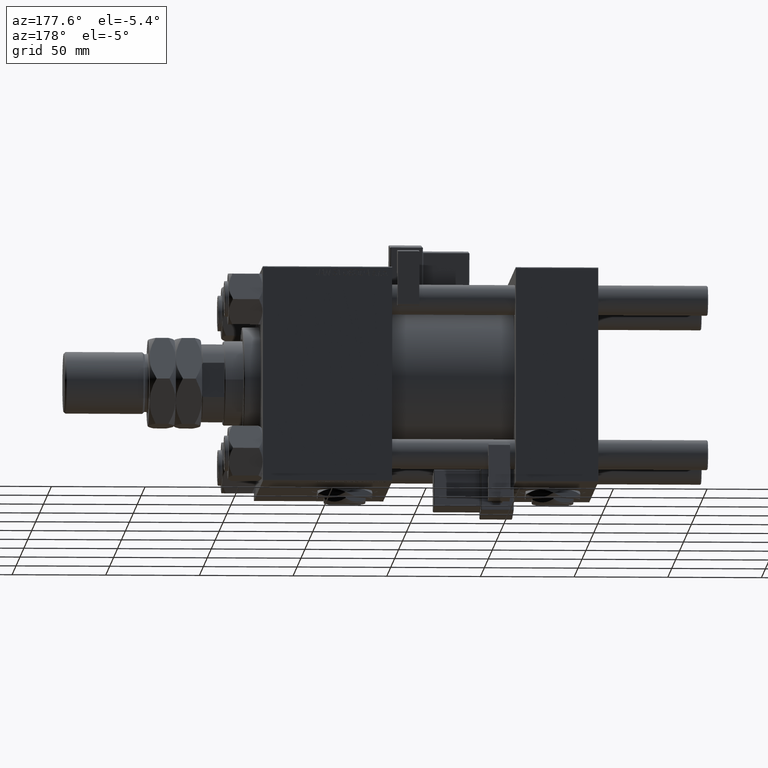
[diagram: clean part render]
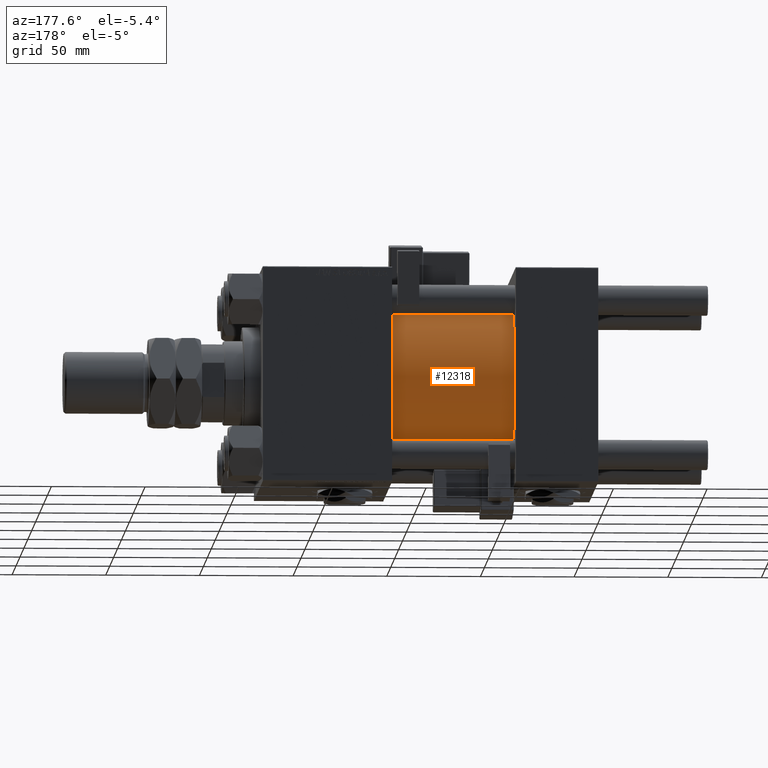
[diagram: same view with one face highlighted and labeled with its STEP entity id]
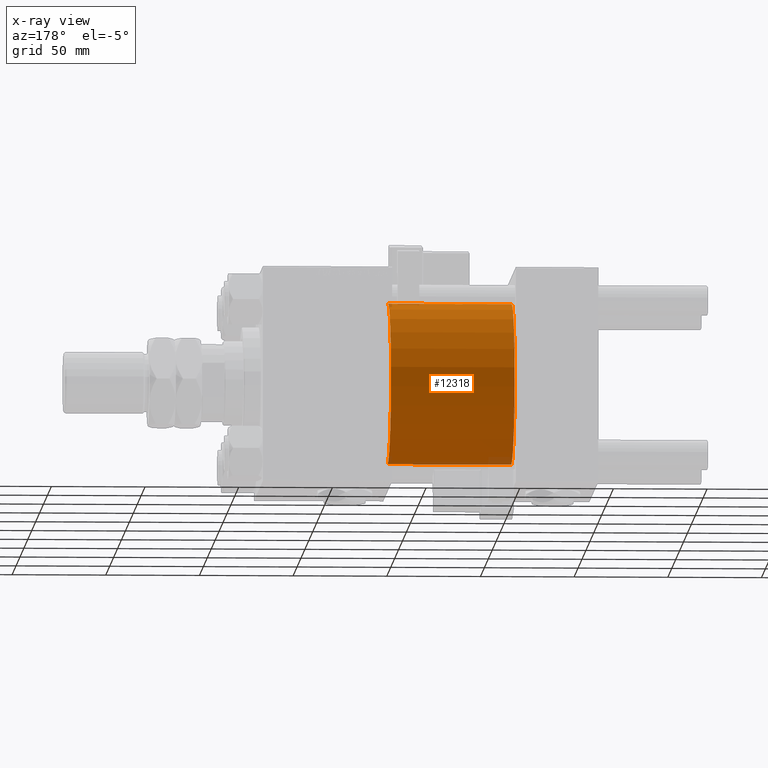
[diagram: x-ray of the same camera — body ghosted, the highlighted face saturated]
A machine part, auxiliary view. The second image highlights one B-rep face of the part: STEP entity #12318.
The next image is the same camera in x-ray: the body ghosted, the highlighted face saturated — about 2% of this face is hidden behind the body in this view.
In plain terms, the highlighted cylindrical surface (partial cylindrical patch) has radius 43 mm, axis along (-1, -0, -0).
Its self-contained STEP definition (entity closure, byte-faithful):
#1517 = EDGE_LOOP ( 'NONE', ( #27768, #39079, #27566, #55779 ) ) ;
#4310 = CIRCLE ( 'NONE', #11618, 43.00000000000000000 ) ;
#4710 = EDGE_CURVE ( 'NONE', #51295, #12595, #4310, .T. ) ;
#6780 = AXIS2_PLACEMENT_3D ( 'NONE', #12963, #8148, #8690 ) ;
#8148 = DIRECTION ( 'NONE',  ( 1.000000000000000000, -0.000000000000000000, 0.000000000000000000 ) ) ;
#8690 = DIRECTION ( 'NONE',  ( 0.000000000000000000, 0.000000000000000000, 1.000000000000000000 ) ) ;
#11014 = CARTESIAN_POINT ( 'NONE',  ( 110.0000000000000000, 0.000000000000000000, 0.000000000000000000 ) ) ;
#11618 = AXIS2_PLACEMENT_3D ( 'NONE', #11014, #20127, #16134 ) ;
#11918 = VERTEX_POINT ( 'NONE', #26031 ) ;
#12202 = DIRECTION ( 'NONE',  ( -1.000000000000000000, -0.000000000000000000, -0.000000000000000000 ) ) ;
#12318 = ADVANCED_FACE ( 'NONE', ( #29990 ), #50010, .T. ) ;
#12573 = VECTOR ( 'NONE', #12202, 1000.000000000000000 ) ;
#12595 = VERTEX_POINT ( 'NONE', #46993 ) ;
#12963 = CARTESIAN_POINT ( 'NONE',  ( 44.00000000000000000, 0.000000000000000000, 0.000000000000000000 ) ) ;
#16134 = DIRECTION ( 'NONE',  ( 0.000000000000000000, 0.000000000000000000, -1.000000000000000000 ) ) ;
#20127 = DIRECTION ( 'NONE',  ( 1.000000000000000000, 0.000000000000000000, 0.000000000000000000 ) ) ;
#20884 = CARTESIAN_POINT ( 'NONE',  ( 110.0000000000000000, 0.000000000000000000, 0.000000000000000000 ) ) ;
#22163 = VECTOR ( 'NONE', #49570, 1000.000000000000000 ) ;
#25302 = LINE ( 'NONE', #42656, #12573 ) ;
#26031 = CARTESIAN_POINT ( 'NONE',  ( 44.00000000000000000, 5.265981236333618470E-15, -43.00000000000000000 ) ) ;
#27566 = ORIENTED_EDGE ( 'NONE', *, *, #38539, .T. ) ;
#27768 = ORIENTED_EDGE ( 'NONE', *, *, #4710, .F. ) ;
#29990 = FACE_OUTER_BOUND ( 'NONE', #1517, .T. ) ;
#31889 = CARTESIAN_POINT ( 'NONE',  ( 110.0000000000000000, 5.265981236333618470E-15, -43.00000000000000000 ) ) ;
#32216 = CARTESIAN_POINT ( 'NONE',  ( 110.0000000000000000, 5.265981236333618470E-15, -43.00000000000000000 ) ) ;
#32929 = DIRECTION ( 'NONE',  ( 0.000000000000000000, 0.000000000000000000, 1.000000000000000000 ) ) ;
#36691 = EDGE_CURVE ( 'NONE', #51295, #11918, #53821, .T. ) ;
#38130 = AXIS2_PLACEMENT_3D ( 'NONE', #20884, #46793, #32929 ) ;
#38539 = EDGE_CURVE ( 'NONE', #11918, #49264, #41371, .T. ) ;
#39079 = ORIENTED_EDGE ( 'NONE', *, *, #36691, .T. ) ;
#39098 = CARTESIAN_POINT ( 'NONE',  ( 44.00000000000000000, 0.000000000000000000, 43.00000000000000000 ) ) ;
#41371 = CIRCLE ( 'NONE', #6780, 43.00000000000000000 ) ;
#42656 = CARTESIAN_POINT ( 'NONE',  ( 110.0000000000000000, 0.000000000000000000, 43.00000000000000000 ) ) ;
#46793 = DIRECTION ( 'NONE',  ( -1.000000000000000000, -0.000000000000000000, -0.000000000000000000 ) ) ;
#46993 = CARTESIAN_POINT ( 'NONE',  ( 110.0000000000000000, 0.000000000000000000, 43.00000000000000000 ) ) ;
#49264 = VERTEX_POINT ( 'NONE', #39098 ) ;
#49570 = DIRECTION ( 'NONE',  ( -1.000000000000000000, -0.000000000000000000, -0.000000000000000000 ) ) ;
#50010 = CYLINDRICAL_SURFACE ( 'NONE', #38130, 43.00000000000000000 ) ;
#51295 = VERTEX_POINT ( 'NONE', #31889 ) ;
#53390 = EDGE_CURVE ( 'NONE', #12595, #49264, #25302, .T. ) ;
#53821 = LINE ( 'NONE', #32216, #22163 ) ;
#55779 = ORIENTED_EDGE ( 'NONE', *, *, #53390, .F. ) ;